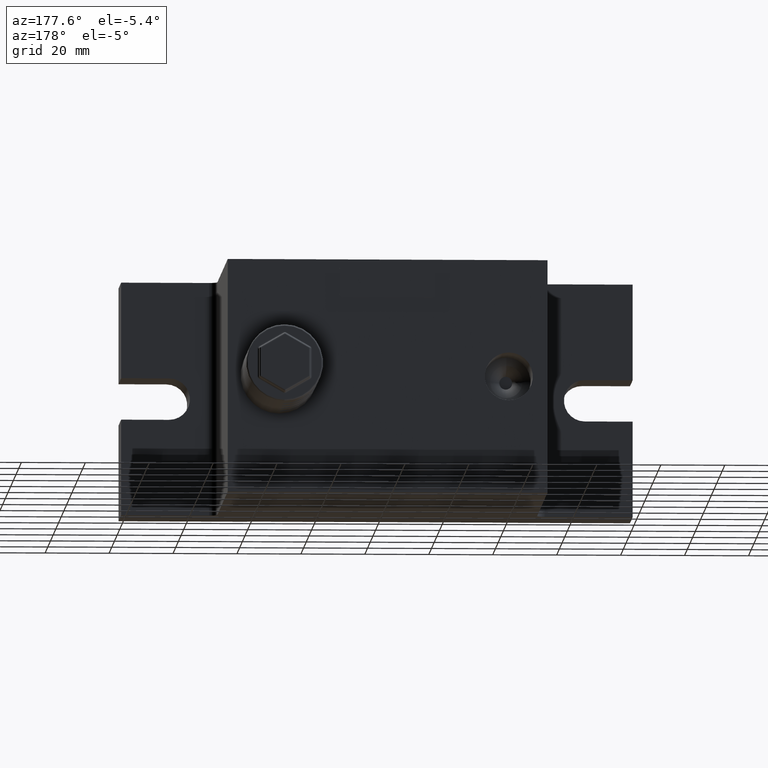
[diagram: clean part render]
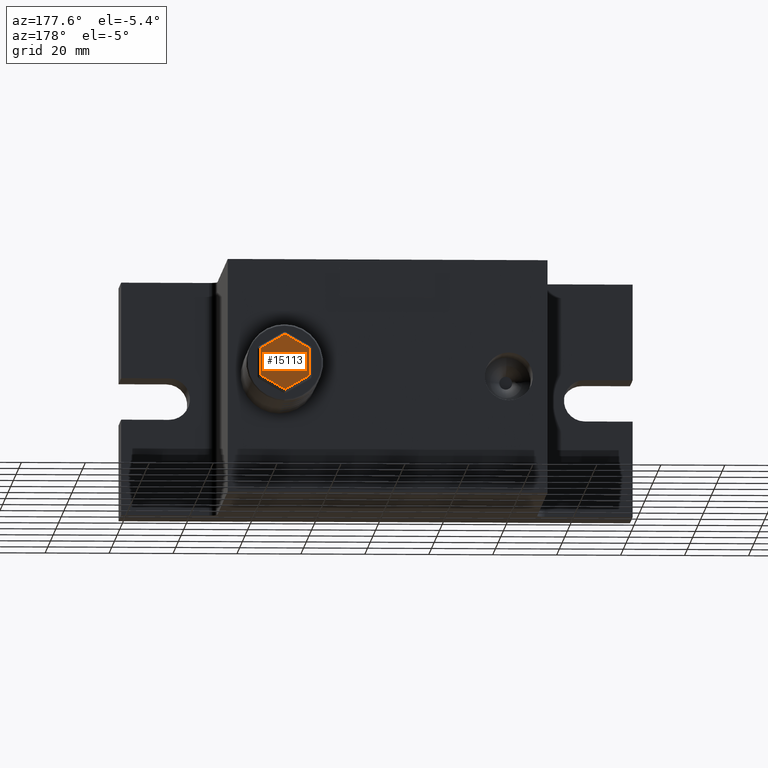
[diagram: same view with one face highlighted and labeled with its STEP entity id]
A machine part, auxiliary view. The second image highlights one B-rep face of the part: STEP entity #15113.
In plain terms, the highlighted planar face has unit normal (-0, 1, -0).
Its self-contained STEP definition (entity closure, byte-faithful):
#199 = CARTESIAN_POINT ( 'NONE',  ( 34.00000000000000000, 96.00000000000000000, -9.237604307034018800 ) ) ;
#282 = DIRECTION ( 'NONE',  ( -3.129292640448033500E-061, 1.000000000000000000, -2.884981595602714200E-031 ) ) ;
#996 = EDGE_CURVE ( 'NONE', #6412, #8635, #13908, .T. ) ;
#1046 = CARTESIAN_POINT ( 'NONE',  ( 41.49999999999999300, 96.00000000000000000, -4.618802153517006700 ) ) ;
#1190 = DIRECTION ( 'NONE',  ( 5.423418723394456200E-031, 2.884981595602714200E-031, 1.000000000000000000 ) ) ;
#2929 = ORIENTED_EDGE ( 'NONE', *, *, #996, .T. ) ;
#3076 = LINE ( 'NONE', #10681, #10825 ) ;
#4013 = CARTESIAN_POINT ( 'NONE',  ( 33.75000000000000000, 96.00000000000000000, -8.804591605141800100 ) ) ;
#5283 = EDGE_CURVE ( 'NONE', #15992, #6389, #22499, .T. ) ;
#6247 = EDGE_CURVE ( 'NONE', #17540, #15992, #10538, .T. ) ;
#6389 = VERTEX_POINT ( 'NONE', #18852 ) ;
#6412 = VERTEX_POINT ( 'NONE', #19278 ) ;
#6695 = CARTESIAN_POINT ( 'NONE',  ( 41.49999999999999300, 96.00000000000000000, 4.330127018922194500 ) ) ;
#6851 = ORIENTED_EDGE ( 'NONE', *, *, #5283, .T. ) ;
#7288 = FACE_OUTER_BOUND ( 'NONE', #20704, .T. ) ;
#7685 = VERTEX_POINT ( 'NONE', #12193 ) ;
#8635 = VERTEX_POINT ( 'NONE', #21470 ) ;
#9459 = EDGE_CURVE ( 'NONE', #8635, #7685, #15020, .T. ) ;
#9566 = LINE ( 'NONE', #4013, #15241 ) ;
#10317 = CARTESIAN_POINT ( 'NONE',  ( 34.00000000000000000, 96.00000000000000000, 8.660254037844390900 ) ) ;
#10480 = CARTESIAN_POINT ( 'NONE',  ( 41.74999999999999300, 96.00000000000000000, 4.185789451624788900 ) ) ;
#10538 = LINE ( 'NONE', #10480, #20056 ) ;
#10681 = CARTESIAN_POINT ( 'NONE',  ( 34.25000000000000000, 96.00000000000000000, 8.804591605141800100 ) ) ;
#10825 = VECTOR ( 'NONE', #12505, 1000.000000000000000 ) ;
#11445 = AXIS2_PLACEMENT_3D ( 'NONE', #199, #282, #23130 ) ;
#11515 = VECTOR ( 'NONE', #14600, 1000.000000000000000 ) ;
#11517 = DIRECTION ( 'NONE',  ( -0.8660254037844387100, 0.0000000000000000000, -0.4999999999999998900 ) ) ;
#12193 = CARTESIAN_POINT ( 'NONE',  ( 26.50000000000000000, 96.00000000000000000, 4.330127018922198100 ) ) ;
#12505 = DIRECTION ( 'NONE',  ( 0.8660254037844387100, 0.0000000000000000000, 0.4999999999999998900 ) ) ;
#13518 = PLANE ( 'NONE',  #11445 ) ;
#13908 = LINE ( 'NONE', #22232, #11515 ) ;
#14600 = DIRECTION ( 'NONE',  ( -0.8660254037844387100, 9.860761315262645400E-032, 0.4999999999999998300 ) ) ;
#14959 = ORIENTED_EDGE ( 'NONE', *, *, #20335, .T. ) ;
#15020 = LINE ( 'NONE', #18318, #20678 ) ;
#15113 = ADVANCED_FACE ( 'NONE', ( #7288 ), #13518, .T. ) ;
#15241 = VECTOR ( 'NONE', #11517, 1000.000000000000000 ) ;
#15992 = VERTEX_POINT ( 'NONE', #6695 ) ;
#17540 = VERTEX_POINT ( 'NONE', #10317 ) ;
#18292 = DIRECTION ( 'NONE',  ( 0.8660254037844387100, -9.860761315262645400E-032, -0.4999999999999998300 ) ) ;
#18318 = CARTESIAN_POINT ( 'NONE',  ( 26.50000000000000000, 96.00000000000000000, 4.618802153517004100 ) ) ;
#18852 = CARTESIAN_POINT ( 'NONE',  ( 41.49999999999999300, 96.00000000000000000, -4.330127018922196300 ) ) ;
#19278 = CARTESIAN_POINT ( 'NONE',  ( 34.00000000000000000, 96.00000000000000000, -8.660254037844390900 ) ) ;
#19847 = DIRECTION ( 'NONE',  ( -5.423418723394456200E-031, -2.884981595602714200E-031, -1.000000000000000000 ) ) ;
#20056 = VECTOR ( 'NONE', #18292, 1000.000000000000000 ) ;
#20335 = EDGE_CURVE ( 'NONE', #7685, #17540, #3076, .T. ) ;
#20678 = VECTOR ( 'NONE', #1190, 1000.000000000000000 ) ;
#20704 = EDGE_LOOP ( 'NONE', ( #20938, #6851, #24453, #2929, #21644, #14959 ) ) ;
#20938 = ORIENTED_EDGE ( 'NONE', *, *, #6247, .T. ) ;
#21304 = VECTOR ( 'NONE', #19847, 1000.000000000000000 ) ;
#21470 = CARTESIAN_POINT ( 'NONE',  ( 26.50000000000000000, 96.00000000000000000, -4.330127018922187400 ) ) ;
#21644 = ORIENTED_EDGE ( 'NONE', *, *, #9459, .T. ) ;
#22232 = CARTESIAN_POINT ( 'NONE',  ( 26.25000000000000000, 96.00000000000000000, -4.185789451624781800 ) ) ;
#22499 = LINE ( 'NONE', #1046, #21304 ) ;
#23130 = DIRECTION ( 'NONE',  ( -5.423418723394456200E-031, -2.884981595602714200E-031, -1.000000000000000000 ) ) ;
#24000 = EDGE_CURVE ( 'NONE', #6389, #6412, #9566, .T. ) ;
#24453 = ORIENTED_EDGE ( 'NONE', *, *, #24000, .T. ) ;